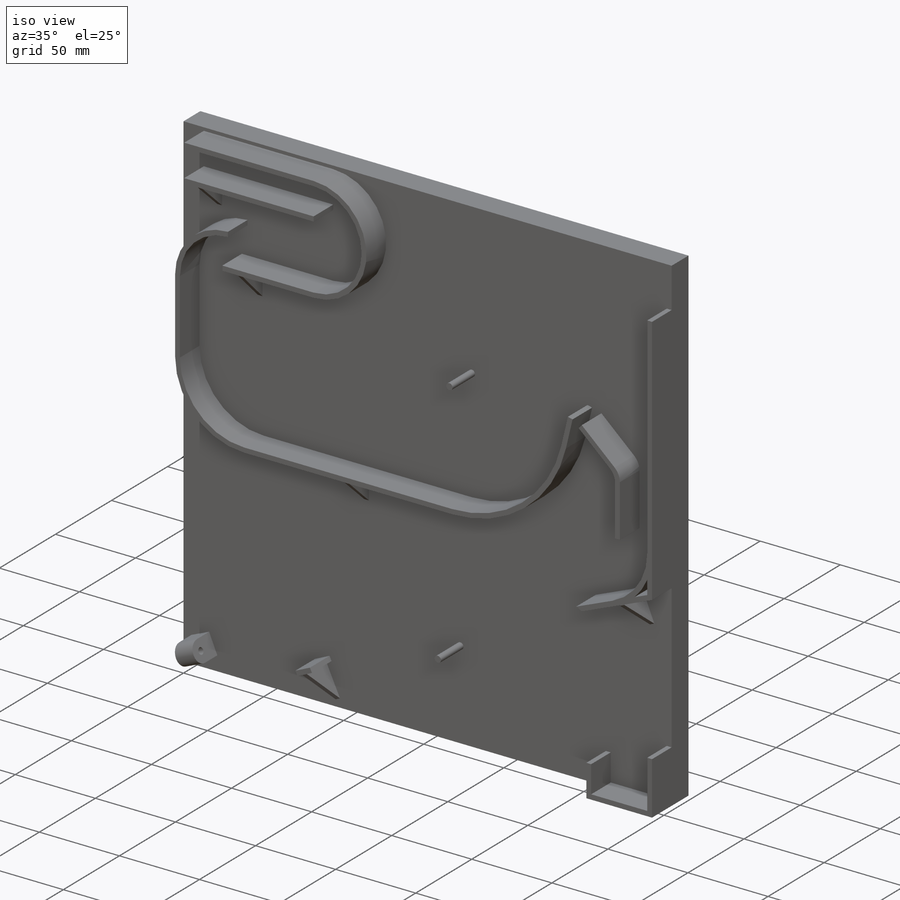
[diagram: iso view]
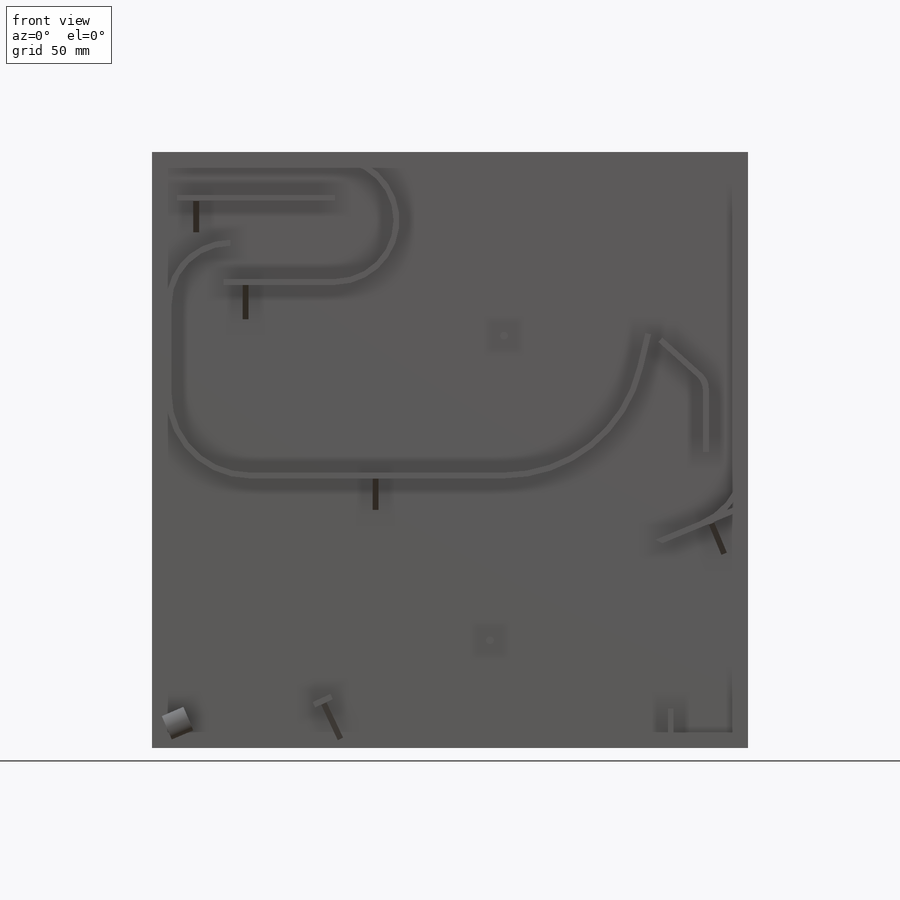
[diagram: front view]
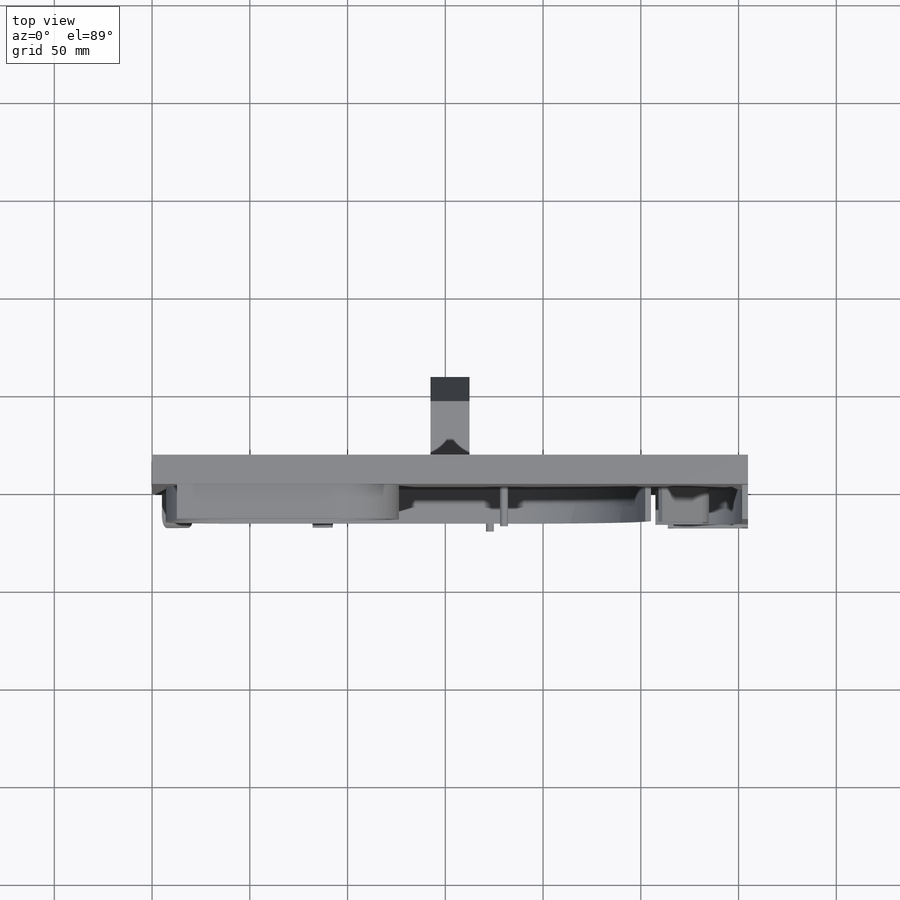
[diagram: top view]
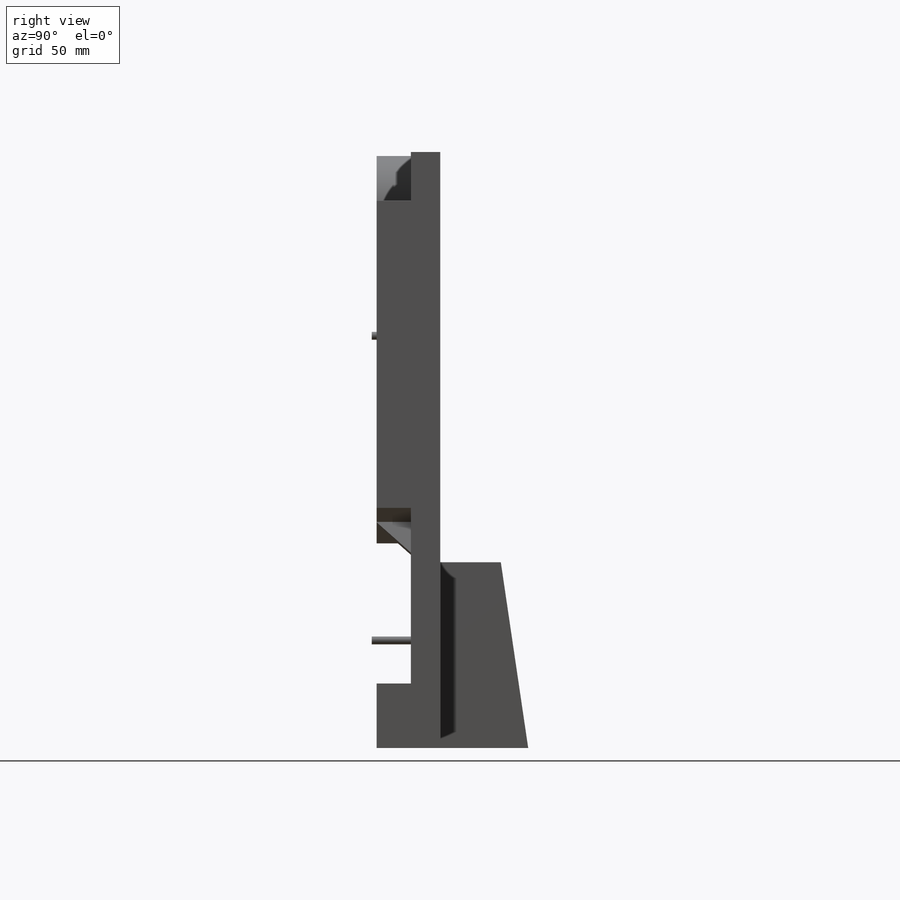
[diagram: right view]
SOLIDWORKS PART (.sldprt)
format: sldprt  version: not decoded by parser v0  size: 796,672 bytes
history: native  units: mm
features: sketch x12, cut_extrude x8, extrude x4, material x1 (+13 scaffold rows collapsed)
feature tree (38):
  scaffold x13  (default folders/planes/origin — collapsed)
  material  "Material <not specified>"
  sketch  "Sketch2"  dims[c1.D8=30.0mm c1.D9=33.0mm c1.D13=30.0mm c1.D15=30.0mm c1.D20=~40.011193mm c1.D21=~43.011193mm c1.D23=70.0mm c1.D24=73.0mm c1.D26=4.0mm c1.D28=33.0mm c1.D39=10.0mm c1.D43=10.0mm c1.D47=35.0mm c1.D48=38.0mm c1.D72=4.0mm c1.D1=304.8mm c1.D2=304.8mm c1.D3=3.0mm c1.D4=22.0mm c1.D5=93.5mm c1.D6=3.0mm c1.D7=2.0mm c1.D10=57.0mm c1.D11=25.0mm c1.D12=10.0mm c1.D14=17.0mm c2.D15=3.0mm c2.D16=3.0mm c2.D17=124.0mm c2.D18=46.0mm c2.D19=3.0mm c2.D22=130.0mm c2.D23=130.0mm c3.D23=90.0deg c4.D23=3.0mm c4.D25=3.0mm c4.D27=70.0mm c5.D27=~76.679009deg c5.D28=43.0mm c5.D29=155.0mm c5.D30=25.0mm c5.D31=6.0mm c5.D32=~31.879672mm c6.D32=130.0deg c6.D33=~20.975357mm c6.D34=36.0mm c7.D33=3.0mm c7.D35=112.0mm c7.D36=~17.290533mm c7.D37=3.0mm c7.D38=36.0mm c7.D39=36.0mm c7.D40=3.0mm c7.D41=36.0mm c8.D41=130.0deg c9.D41=36.0mm c10.D41=50.0deg c11.D41=36.0mm c11.D25=18.0mm c11.D31=3.0mm c11.D32=~26.168788mm c12.D32=132.0deg c12.D34=95.0mm c12.D35=32.0mm c12.D36=6.0mm c12.D37=~17.066377mm c12.D38=37.0mm c12.D39=3.0mm c12.D40=3.0mm c12.D41=3.0mm c12.D42=3.0mm c12.D43=~30.821322mm c12.D44=301.8mm c13.D44=~112.466019deg c14.D44=48.0mm c14.D45=155.0mm c15.D45=112.5deg c15.D46=3.0mm c15.D48=3.0mm c15.D49=3.0mm c15.D50=3.0mm c15.D51=3.0mm c15.D52=33.0mm c15.D53=35.0mm c15.D54=17.0mm c15.D55=95.0mm c15.D56=4.0mm c15.D57=3.0mm c15.D58=20.0mm c15.D59=10.0mm c15.D60=3.5mm c15.D61=3.0mm c15.D62=~9.833728mm c16.D62=65.0deg c16.D63=16.0mm c16.D64=16.0mm c17.D63=21.0mm c17.D64=16.0mm c17.D65=5.0mm c17.D66=16.3mm c17.D67=13.0mm c17.D68=16.0mm c18.D64=16.3mm c18.D65=11.0mm c18.D66=5.0mm c18.D68=~2.646579mm c18.D69=~2.931648mm c19.D68=~1.261023mm c20.D68=90.0deg c20.D70=~2.727534mm c21.D70=~89.607975deg c22.D70=~2.727534mm c23.D70=~89.607975deg c24.D70=132.0mm c24.D71=55.0mm c24.D73=130.0mm c25.D73=90.0deg c26.D73=16.0mm c26.D74=3.0mm c26.D75=3.0mm c26.D76=17.5mm c26.D77=3.0mm c26.D78=16.0mm c26.D79=3.0mm c26.D80=17.0mm c26.D81=~46.605594mm c26.D82=63.2986mm c26.D25=~77.015458deg]
  extrude  "Boss-Extrude1"  Depth=15mm
  extrude  "Boss-Extrude2"  [1 undecoded]
  sketch  "Sketch2<3>"  dims[D1=17.5mm]
  sketch  "Sketch3"
  cut_extrude  "Cut-Extrude1"  Depth=17.5mm
  sketch  "Sketch4"
  cut_extrude  "Cut-Extrude2"  Depth=17.5mm
  sketch  "Sketch5"
  cut_extrude  "Cut-Extrude3"  Depth=17.5mm
  sketch  "Sketch6"
  cut_extrude  "Cut-Extrude4"  Depth=17.5mm
  sketch  "Sketch7"
  cut_extrude  "Cut-Extrude5"  Depth=17.5mm
  extrude  "Boss-Extrude3"  [1 undecoded]
  sketch  "Sketch2<5>"  dims[D1=20.0mm]
  sketch  "Sketch8"  dims[c1.D1=20.0mm c1.D2=142.4mm c1.D3=142.4mm c2.D2=142.4mm c2.D3=95.0mm c2.D4=0.0mm]
  extrude  "Boss-Extrude4"  Depth=45mm
  sketch  "Sketch9"
  cut_extrude  "Cut-Extrude6"  Depth=45mm
  sketch  "Sketch11"
  cut_extrude  "Cut-Extrude8"  Depth=35mm
  sketch  "Sketch10"  dims[D1=13.0mm]
  cut_extrude  "Cut-Extrude7"  Depth=45mm
decode coverage: 15 of 24 modeling features carry decoded parameters
note: ~ marks probable driven/reference dimensions
note: 2 parameter values undecoded
note: suppression state not decoded; provenance and decode notes live in map.json
